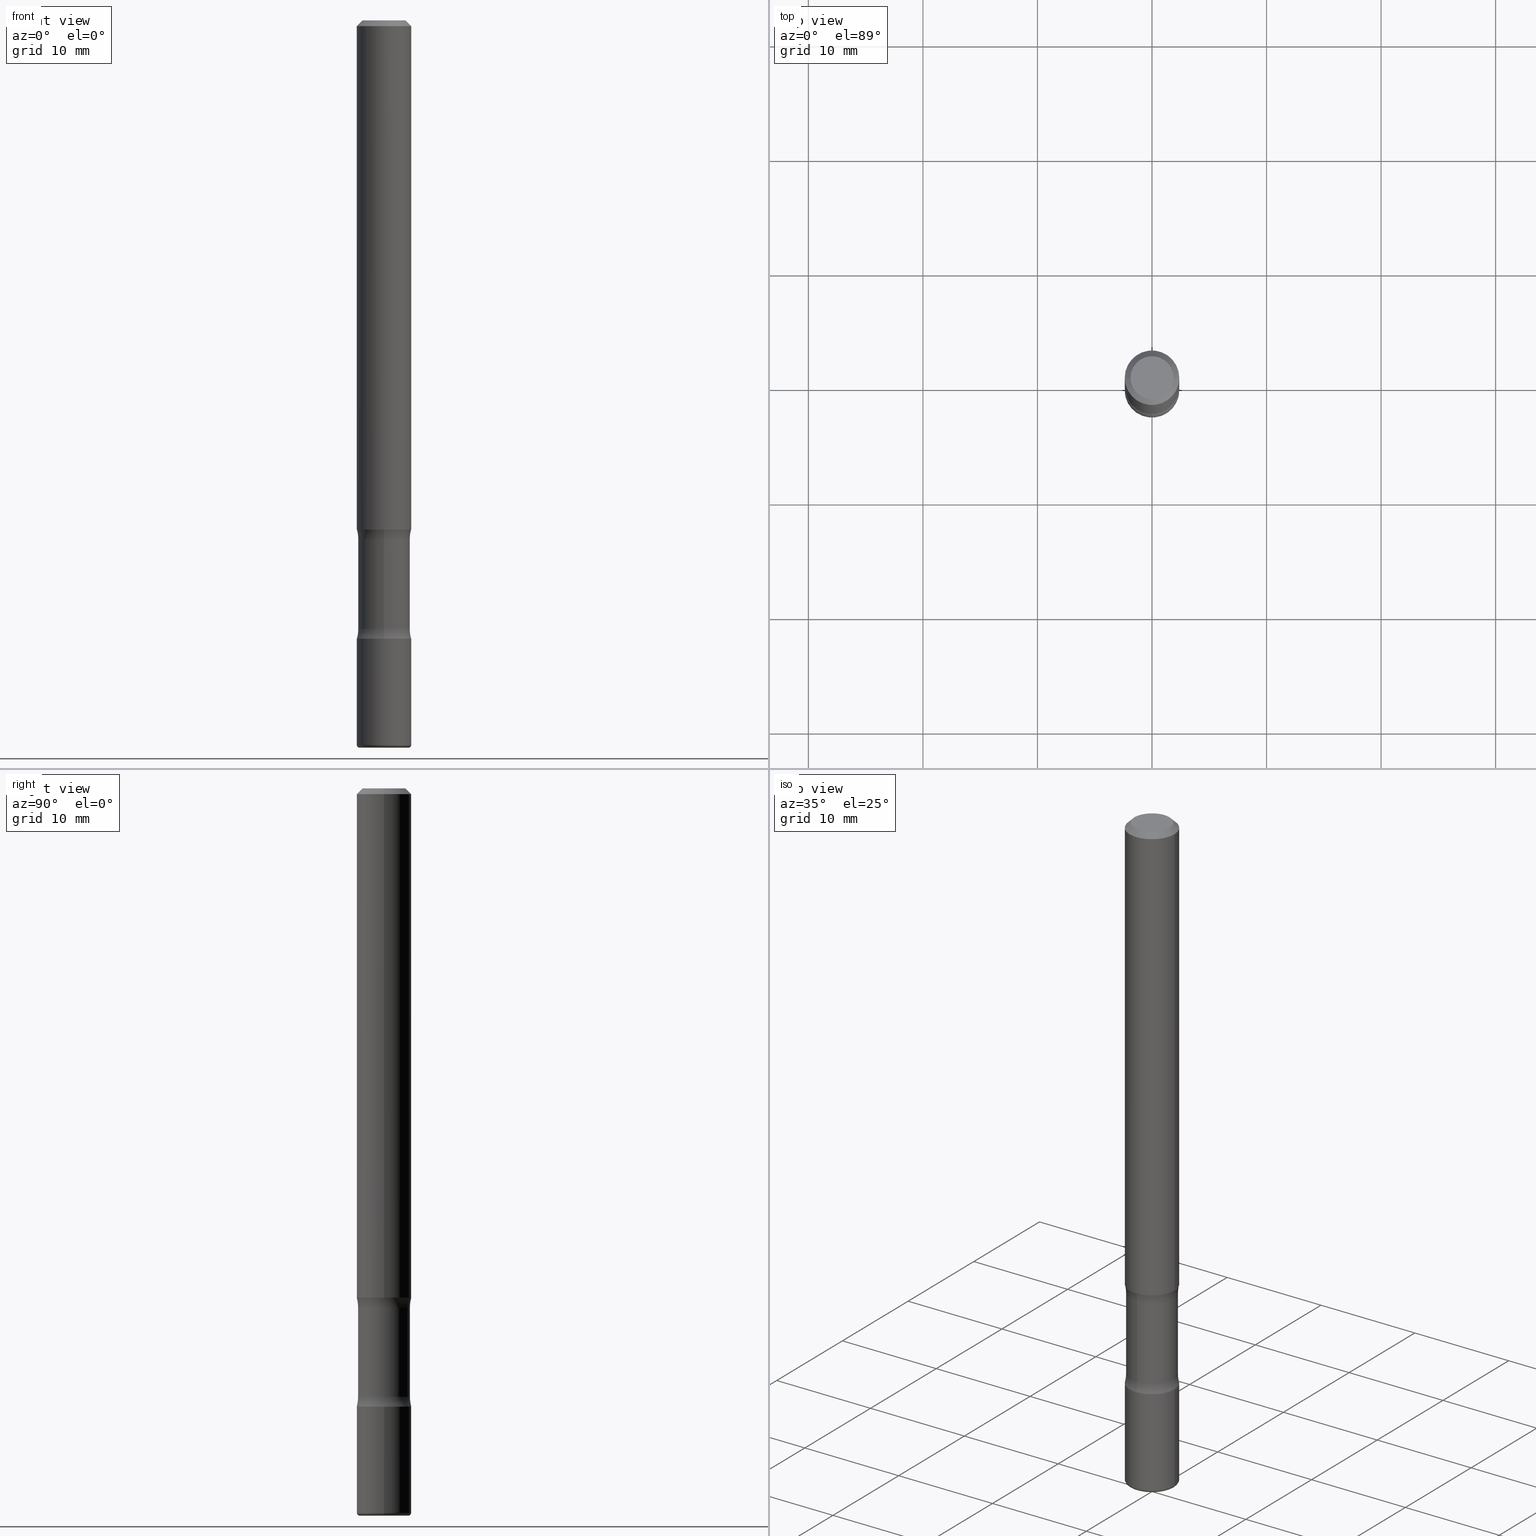
[diagram: canonical four-view strip — front | top / right | iso, engineering-drawing reading convention]
A machine part, canonical four-view strip (front | top / right | iso — engineering-drawing reading convention). The complete STEP part file that produces these views, byte-faithful:
ISO-10303-21;
HEADER;
FILE_DESCRIPTION (( 'STEP AP203' ),
    '1' );
FILE_NAME ('37771.STEP',
    '2024-03-02T00:11:02',
    ( '' ),
    ( '' ),
    'SwSTEP 2.0',
    'SolidWorks 2023',
    '' );
FILE_SCHEMA (( 'CONFIG_CONTROL_DESIGN' ));
ENDSEC;

DATA;
#1 = LINE ( 'NONE', #416, #74 ) ;
#2 = EDGE_LOOP ( 'NONE', ( #294, #223, #277, #60 ) ) ;
#3 = CARTESIAN_POINT ( 'NONE',  ( -6.431716872910290192E-16, -0.09375000000000745237, -2.125000000000000000 ) ) ;
#4 = APPLICATION_PROTOCOL_DEFINITION ( 'international standard', 'config_control_design', 1994, #108 ) ;
#5 = VERTEX_POINT ( 'NONE', #537 ) ;
#6 = CALENDAR_DATE ( 2024, 1, 3 ) ;
#7 = ADVANCED_FACE ( 'NONE', ( #14 ), #493, .F. ) ;
#8 = VERTEX_POINT ( 'NONE', #443 ) ;
#9 = ORIENTED_EDGE ( 'NONE', *, *, #442, .T. ) ;
#10 = DIRECTION ( 'NONE',  ( 6.982962677686265133E-15, 1.000000000000000000, -6.134676196298701332E-15 ) ) ;
#11 = PERSON_AND_ORGANIZATION ( #480, #534 ) ;
#12 = CIRCLE ( 'NONE', #207, 0.09375000000000009714 ) ;
#13 = ORIENTED_EDGE ( 'NONE', *, *, #181, .F. ) ;
#14 = FACE_OUTER_BOUND ( 'NONE', #87, .T. ) ;
#15 = PLANE ( 'NONE',  #124 ) ;
#16 = VERTEX_POINT ( 'NONE', #392 ) ;
#17 = CARTESIAN_POINT ( 'NONE',  ( 4.325656488947447574E-29, -6.281246590105103764E-15, -1.783910210022204623 ) ) ;
#18 = VERTEX_POINT ( 'NONE', #63 ) ;
#19 = EDGE_CURVE ( 'NONE', #16, #57, #172, .T. ) ;
#20 = AXIS2_PLACEMENT_3D ( 'NONE', #258, #255, #418 ) ;
#21 = DIRECTION ( 'NONE',  ( 1.000000000000000000, -6.860497997771530774E-15, 4.842693077587735886E-29 ) ) ;
#22 = CC_DESIGN_SECURITY_CLASSIFICATION ( #506, ( #212 ) ) ;
#23 = EDGE_LOOP ( 'NONE', ( #67, #356, #273, #112 ) ) ;
#24 = CARTESIAN_POINT ( 'NONE',  ( 0.08375000000000003275, -9.313526471364089937E-15, -2.500000000000000000 ) ) ;
#25 = DIRECTION ( 'NONE',  ( 6.982962677686265922E-15, 1.000000000000000000, -2.913971193241877611E-15 ) ) ;
#26 = EDGE_CURVE ( 'NONE', #389, #530, #405, .T. ) ;
#27 = AXIS2_PLACEMENT_3D ( 'NONE', #486, #93, #33 ) ;
#28 = SHAPE_DEFINITION_REPRESENTATION ( #35, #115 ) ;
#29 =( LENGTH_UNIT ( ) NAMED_UNIT ( * ) SI_UNIT ( $, .METRE. ) );
#30 = AXIS2_PLACEMENT_3D ( 'NONE', #188, #556, #170 ) ;
#31 = CARTESIAN_POINT ( 'NONE',  ( -6.110131029264649859E-16, -0.08906250000000860700, -2.499999999999999556 ) ) ;
#32 = CARTESIAN_POINT ( 'NONE',  ( -1.468575352647924772E-15, -0.2140625000000062339, -1.783910210022203513 ) ) ;
#33 = DIRECTION ( 'NONE',  ( -1.000000000000000000, 6.982962677686267499E-15, 0.000000000000000000 ) ) ;
#34 = DIRECTION ( 'NONE',  ( -6.982962677686265922E-15, -1.000000000000000000, 0.000000000000000000 ) ) ;
#35 = PRODUCT_DEFINITION_SHAPE ( 'NONE', 'NONE',  #379 ) ;
#36 = APPROVAL ( #422, 'UNSPECIFIED' ) ;
#37 = CIRCLE ( 'NONE', #557, 0.1250000000000000278 ) ;
#38 = AXIS2_PLACEMENT_3D ( 'NONE', #455, #72, #163 ) ;
#39 = VERTEX_POINT ( 'NONE', #360 ) ;
#40 = FACE_OUTER_BOUND ( 'NONE', #538, .T. ) ;
#41 = CARTESIAN_POINT ( 'NONE',  ( 6.113672015462842613E-29, -8.728703347107864943E-15, -2.500000000000000000 ) ) ;
#42 = ADVANCED_FACE ( 'NONE', ( #482 ), #452, .T. ) ;
#43 = DIRECTION ( 'NONE',  ( 2.553476385947133355E-29, -3.336808337214295667E-15, -1.000000000000000000 ) ) ;
#44 = EDGE_CURVE ( 'NONE', #481, #386, #446, .T. ) ;
#45 = AXIS2_PLACEMENT_3D ( 'NONE', #448, #100, #193 ) ;
#46 = CARTESIAN_POINT ( 'NONE',  ( 0.09374999999999981959, -7.130013140679428044E-16, -0.02000000000000001776 ) ) ;
#47 = AXIS2_PLACEMENT_3D ( 'NONE', #289, #312, #189 ) ;
#48 = EDGE_LOOP ( 'NONE', ( #352, #178, #89, #400 ) ) ;
#49 = COORDINATED_UNIVERSAL_TIME_OFFSET ( 5, 0, .BEHIND. ) ;
#50 = PLANE ( 'NONE',  #346 ) ;
#51 = ORIENTED_EDGE ( 'NONE', *, *, #315, .T. ) ;
#52 = DATE_TIME_ROLE ( 'creation_date' ) ;
#53 = ADVANCED_FACE ( 'NONE', ( #409 ), #148, .T. ) ;
#54 = ORIENTED_EDGE ( 'NONE', *, *, #191, .T. ) ;
#55 = APPROVAL_DATE_TIME ( #141, #272 ) ;
#56 = VERTEX_POINT ( 'NONE', #244 ) ;
#57 = VERTEX_POINT ( 'NONE', #299 ) ;
#58 = CIRCLE ( 'NONE', #335, 0.09375000000000004163 ) ;
#59 = CYLINDRICAL_SURFACE ( 'NONE', #490, 0.09375000000000002776 ) ;
#60 = ORIENTED_EDGE ( 'NONE', *, *, #315, .F. ) ;
#61 = VERTEX_POINT ( 'NONE', #296 ) ;
#62 = EDGE_CURVE ( 'NONE', #5, #39, #453, .T. ) ;
#63 = CARTESIAN_POINT ( 'NONE',  ( 0.09375000000000004163, -6.764745094008592175E-15, -1.750000000000000000 ) ) ;
#64 = AXIS2_PLACEMENT_3D ( 'NONE', #120, #503, #111 ) ;
#65 = AXIS2_PLACEMENT_3D ( 'NONE', #240, #544, #209 ) ;
#66 = CC_DESIGN_DATE_AND_TIME_ASSIGNMENT ( #268, #52, ( #379 ) ) ;
#67 = ORIENTED_EDGE ( 'NONE', *, *, #468, .F. ) ;
#68 = CLOSED_SHELL ( 'NONE', ( #365, #71, #291, #415, #304, #95, #408, #345 ) ) ;
#69 = APPLICATION_PROTOCOL_DEFINITION ( 'international standard', 'config_control_design', 1994, #383 ) ;
#70 = AXIS2_PLACEMENT_3D ( 'NONE', #278, #462, #470 ) ;
#71 = ADVANCED_FACE ( 'NONE', ( #410 ), #123, .F. ) ;
#72 = DIRECTION ( 'NONE',  ( 2.553476385947133355E-29, -3.336808337214295667E-15, -1.000000000000000000 ) ) ;
#73 = AXIS2_PLACEMENT_3D ( 'NONE', #169, #176, #265 ) ;
#74 = VECTOR ( 'NONE', #511, 39.37007874015748143 ) ;
#75 = AXIS2_PLACEMENT_3D ( 'NONE', #381, #351, #96 ) ;
#76 = FACE_OUTER_BOUND ( 'NONE', #293, .T. ) ;
#77 = EDGE_CURVE ( 'NONE', #61, #322, #37, .T. ) ;
#78 = CARTESIAN_POINT ( 'NONE',  ( -0.07374999999999984346, 5.499083108677921624E-16, -3.723527850031186263E-30 ) ) ;
#79 = DESIGN_CONTEXT ( 'detailed design', #108, 'design' ) ;
#80 = DIRECTION ( 'NONE',  ( 1.000000000000000000, -6.982962677686266711E-15, 4.876176775795935793E-29 ) ) ;
#81 = CALENDAR_DATE ( 2024, 1, 3 ) ;
#82 = CLOSED_SHELL ( 'NONE', ( #560, #42, #281, #7, #228, #326 ) ) ;
#83 = EDGE_CURVE ( 'NONE', #322, #439, #12, .T. ) ;
#84 = CIRCLE ( 'NONE', #348, 0.1250000000000000278 ) ;
#85 = ORIENTED_EDGE ( 'NONE', *, *, #376, .F. ) ;
#86 = DATE_TIME_ROLE ( 'classification_date' ) ;
#87 = EDGE_LOOP ( 'NONE', ( #396, #413 ) ) ;
#88 = PERSON_AND_ORGANIZATION_ROLE ( 'creator' ) ;
#89 = ORIENTED_EDGE ( 'NONE', *, *, #457, .F. ) ;
#90 = FACE_OUTER_BOUND ( 'NONE', #200, .T. ) ;
#91 = VERTEX_POINT ( 'NONE', #205 ) ;
#92 = AXIS2_PLACEMENT_3D ( 'NONE', #133, #456, #488 ) ;
#93 = DIRECTION ( 'NONE',  ( 2.445468806185136597E-29, -3.491481338843145583E-15, -1.000000000000000000 ) ) ;
#94 = CIRCLE ( 'NONE', #358, 0.08906249999999994726 ) ;
#95 = ADVANCED_FACE ( 'NONE', ( #371 ), #543, .F. ) ;
#96 = DIRECTION ( 'NONE',  ( 6.982962677686265922E-15, 1.000000000000000000, -3.336808337214296061E-15 ) ) ;
#97 = ORIENTED_EDGE ( 'NONE', *, *, #145, .T. ) ;
#98 = ORIENTED_EDGE ( 'NONE', *, *, #159, .T. ) ;
#99 = LINE ( 'NONE', #174, #302 ) ;
#100 = DIRECTION ( 'NONE',  ( 2.438088387897960049E-29, -3.491481338843145188E-15, -1.000000000000000000 ) ) ;
#101 = EDGE_CURVE ( 'NONE', #57, #16, #489, .T. ) ;
#102 = VERTEX_POINT ( 'NONE', #46 ) ;
#103 = CIRCLE ( 'NONE', #394, 0.08906249999999993339 ) ;
#104 = CARTESIAN_POINT ( 'NONE',  ( 6.113672015462842613E-29, -8.728703347107864943E-15, -2.500000000000000000 ) ) ;
#105 = LOCAL_TIME ( 19, 11, 2.000000000000000000, #49 ) ;
#106 = DIRECTION ( 'NONE',  ( -1.000000000000000000, 6.982962677686265922E-15, -4.883557194083112901E-29 ) ) ;
#107 = ORIENTED_EDGE ( 'NONE', *, *, #347, .F. ) ;
#108 = APPLICATION_CONTEXT ( 'configuration controlled 3d designs of mechanical parts and assemblies' ) ;
#109 = EDGE_LOOP ( 'NONE', ( #509, #522, #311, #391 ) ) ;
#110 = CC_DESIGN_DATE_AND_TIME_ASSIGNMENT ( #467, #86, ( #506 ) ) ;
#111 = DIRECTION ( 'NONE',  ( 1.000000000000000000, -6.982962677686265133E-15, 4.883557194083112340E-29 ) ) ;
#112 = ORIENTED_EDGE ( 'NONE', *, *, #515, .T. ) ;
#113 = ORIENTED_EDGE ( 'NONE', *, *, #434, .F. ) ;
#114 = AXIS2_PLACEMENT_3D ( 'NONE', #553, #344, #182 ) ;
#115 = ADVANCED_BREP_SHAPE_REPRESENTATION ( '37771', ( #171, #197, #194, #252 ), #298 ) ;
#116 = LINE ( 'NONE', #407, #117 ) ;
#117 = VECTOR ( 'NONE', #329, 39.37007874015748143 ) ;
#118 = EDGE_CURVE ( 'NONE', #231, #102, #275, .T. ) ;
#119 = PLANE ( 'NONE',  #402 ) ;
#120 = CARTESIAN_POINT ( 'NONE',  ( 6.089217327400989947E-29, -8.693788533719431716E-15, -2.489999999999999769 ) ) ;
#121 = MECHANICAL_CONTEXT ( 'NONE', #383, 'mechanical' ) ;
#122 = EDGE_CURVE ( 'NONE', #439, #322, #199, .T. ) ;
#123 = TOROIDAL_SURFACE ( 'NONE', #132, 0.2140624999999999889, 0.1250000000000000278 ) ;
#124 = AXIS2_PLACEMENT_3D ( 'NONE', #465, #366, #420 ) ;
#125 = CARTESIAN_POINT ( 'NONE',  ( -0.09375000000000002776, 6.661338147750941215E-16, -4.611501647113975397E-30 ) ) ;
#126 = FACE_OUTER_BOUND ( 'NONE', #109, .T. ) ;
#127 = DIRECTION ( 'NONE',  ( 1.000000000000000000, -6.982962677686267499E-15, 0.000000000000000000 ) ) ;
#128 = CARTESIAN_POINT ( 'NONE',  ( 6.546527510331397661E-16, 0.09374999999999261702, -2.125000000000000444 ) ) ;
#129 = ORIENTED_EDGE ( 'NONE', *, *, #145, .F. ) ;
#130 = DIRECTION ( 'NONE',  ( 1.000000000000000000, -6.982962677686266711E-15, 4.876176775795935793E-29 ) ) ;
#131 = PERSON_AND_ORGANIZATION_ROLE ( 'creator' ) ;
#132 = AXIS2_PLACEMENT_3D ( 'NONE', #161, #341, #249 ) ;
#133 = CARTESIAN_POINT ( 'NONE',  ( 5.196621213143415268E-29, -7.419397845041685201E-15, -2.125000000000000000 ) ) ;
#134 = CIRCLE ( 'NONE', #525, 0.07374999999999984346 ) ;
#135 = ORIENTED_EDGE ( 'NONE', *, *, #144, .T. ) ;
#136 = DIRECTION ( 'NONE',  ( 2.553476385947133355E-29, -3.336808337214295667E-15, -1.000000000000000000 ) ) ;
#137 = PERSON_AND_ORGANIZATION ( #480, #534 ) ;
#138 = EDGE_LOOP ( 'NONE', ( #431, #411, #54, #398 ) ) ;
#139 = DIRECTION ( 'NONE',  ( 1.000000000000000000, -6.982962677686275388E-15, 0.000000000000000000 ) ) ;
#140 = DIRECTION ( 'NONE',  ( -2.445468806185136877E-29, 3.491481338843145188E-15, 1.000000000000000000 ) ) ;
#141 = DATE_AND_TIME ( #81, #423 ) ;
#142 = EDGE_LOOP ( 'NONE', ( #13, #471 ) ) ;
#143 = ORIENTED_EDGE ( 'NONE', *, *, #83, .F. ) ;
#144 = EDGE_CURVE ( 'NONE', #477, #231, #355, .T. ) ;
#145 = EDGE_CURVE ( 'NONE', #91, #530, #378, .T. ) ;
#146 = DIRECTION ( 'NONE',  ( 1.000000000000000000, -6.982962677686265922E-15, 4.876176775795935793E-29 ) ) ;
#147 = ORIENTED_EDGE ( 'NONE', *, *, #549, .T. ) ;
#148 = TOROIDAL_SURFACE ( 'NONE', #64, 0.08375000000000003275, 0.01000000000000008174 ) ;
#149 = CIRCLE ( 'NONE', #47, 0.09375000000000002776 ) ;
#150 = DIRECTION ( 'NONE',  ( -2.445468806185136597E-29, 3.491481338843145583E-15, 1.000000000000000000 ) ) ;
#151 = CARTESIAN_POINT ( 'NONE',  ( 5.110032292609207884E-29, -7.306245973522905960E-15, -2.091089789977795821 ) ) ;
#152 = DIRECTION ( 'NONE',  ( 1.000000000000000000, -6.982962677686270655E-15, 0.000000000000000000 ) ) ;
#153 = CARTESIAN_POINT ( 'NONE',  ( 0.000000000000000000, 0.000000000000000000, 0.000000000000000000 ) ) ;
#154 = VECTOR ( 'NONE', #303, 39.37007874015748143 ) ;
#155 = AXIS2_PLACEMENT_3D ( 'NONE', #417, #387, #270 ) ;
#156 = VECTOR ( 'NONE', #140, 39.37007874015748143 ) ;
#157 = DIRECTION ( 'NONE',  ( 1.000000000000000000, -6.982962677686266711E-15, 4.876176775795935793E-29 ) ) ;
#158 = EDGE_LOOP ( 'NONE', ( #325, #245, #196, #282 ) ) ;
#159 = EDGE_CURVE ( 'NONE', #18, #102, #1, .T. ) ;
#160 =( NAMED_UNIT ( * ) SI_UNIT ( $, .STERADIAN. ) SOLID_ANGLE_UNIT ( ) );
#161 = CARTESIAN_POINT ( 'NONE',  ( 5.113694852322927974E-29, -7.301000979552905916E-15, -2.091089789977795821 ) ) ;
#162 = PRODUCT ( '37771', '37771', '', ( #121 ) ) ;
#163 = DIRECTION ( 'NONE',  ( 6.982962677686265922E-15, 1.000000000000000000, -3.336808337214296061E-15 ) ) ;
#164 = VECTOR ( 'NONE', #384, 39.37007874015748143 ) ;
#165 = LOCAL_TIME ( 19, 11, 2.000000000000000000, #520 ) ;
#166 = DIRECTION ( 'NONE',  ( 1.000000000000000000, 0.000000000000000000, 0.000000000000000000 ) ) ;
#167 = CC_DESIGN_PERSON_AND_ORGANIZATION_ASSIGNMENT ( #137, #88, ( #379 ) ) ;
#168 = DIRECTION ( 'NONE',  ( 2.553476385947132794E-29, -3.336808337214295667E-15, -1.000000000000000000 ) ) ;
#169 = CARTESIAN_POINT ( 'NONE',  ( 6.113672015462842613E-29, -8.728703347107864943E-15, -2.500000000000000000 ) ) ;
#170 = DIRECTION ( 'NONE',  ( 6.982962677686265133E-15, 1.000000000000000000, -6.134676196298701332E-15 ) ) ;
#171 = MANIFOLD_SOLID_BREP ( 'Body-Move/Copy2[1]', #458 ) ;
#172 = CIRCLE ( 'NONE', #533, 0.09375000000000002776 ) ;
#173 = CARTESIAN_POINT ( 'NONE',  ( -0.09374999999999981959, 5.848231242562233185E-16, -0.02000000000000001776 ) ) ;
#174 = CARTESIAN_POINT ( 'NONE',  ( -0.09374999999999991673, 6.661338147750933326E-16, -4.611501647113969791E-30 ) ) ;
#175 = DIRECTION ( 'NONE',  ( 0.7071067811865467956, -7.319954787623254468E-15, -0.7071067811865482389 ) ) ;
#176 = DIRECTION ( 'NONE',  ( -2.445468806185136597E-29, 3.491481338843145583E-15, 1.000000000000000000 ) ) ;
#177 = FACE_OUTER_BOUND ( 'NONE', #23, .T. ) ;
#178 = ORIENTED_EDGE ( 'NONE', *, *, #434, .T. ) ;
#179 = DIRECTION ( 'NONE',  ( -2.445468806185136597E-29, 3.491481338843145583E-15, 1.000000000000000000 ) ) ;
#180 = APPROVAL_STATUS ( 'not_yet_approved' ) ;
#181 = EDGE_CURVE ( 'NONE', #389, #56, #474, .T. ) ;
#182 = DIRECTION ( 'NONE',  ( 6.982962677686265922E-15, 1.000000000000000000, -2.913971193241877611E-15 ) ) ;
#183 = ORIENTED_EDGE ( 'NONE', *, *, #26, .T. ) ;
#184 = PERSON_AND_ORGANIZATION ( #480, #534 ) ;
#185 = TOROIDAL_SURFACE ( 'NONE', #75, 0.2140624999999999889, 0.1250000000000000278 ) ;
#186 = ORIENTED_EDGE ( 'NONE', *, *, #118, .F. ) ;
#187 = ORIENTED_EDGE ( 'NONE', *, *, #507, .F. ) ;
#188 = CARTESIAN_POINT ( 'NONE',  ( 6.154174857873591467E-29, -8.670700971497045879E-15, -2.500000000000000000 ) ) ;
#189 = DIRECTION ( 'NONE',  ( 1.000000000000000000, -6.982962677686270655E-15, 0.000000000000000000 ) ) ;
#190 = APPROVAL_ROLE ( '' ) ;
#191 = EDGE_CURVE ( 'NONE', #39, #386, #237, .T. ) ;
#192 = ORIENTED_EDGE ( 'NONE', *, *, #242, .T. ) ;
#193 = DIRECTION ( 'NONE',  ( -1.000000000000000000, 6.982962677686265922E-15, -4.876176775795935793E-29 ) ) ;
#194 = MANIFOLD_SOLID_BREP ( 'Body-Move/Copy2[4]', #68 ) ;
#195 = ORIENTED_EDGE ( 'NONE', *, *, #122, .F. ) ;
#196 = ORIENTED_EDGE ( 'NONE', *, *, #122, .T. ) ;
#197 = MANIFOLD_SOLID_BREP ( 'Body-Move/Copy2[2]', #82 ) ;
#198 = DIRECTION ( 'NONE',  ( 2.553476385947133355E-29, -3.336808337214295667E-15, -1.000000000000000000 ) ) ;
#199 = CIRCLE ( 'NONE', #114, 0.09375000000000009714 ) ;
#200 = EDGE_LOOP ( 'NONE', ( #430, #359, #340, #279 ) ) ;
#201 = CC_DESIGN_APPROVAL ( #272, ( #379 ) ) ;
#202 = LOCAL_TIME ( 19, 11, 2.000000000000000000, #393 ) ;
#203 = DIRECTION ( 'NONE',  ( 6.860497997771531562E-15, 1.000000000000000000, 0.000000000000000000 ) ) ;
#204 = CARTESIAN_POINT ( 'NONE',  ( 5.196621213143415268E-29, -7.419397845041685201E-15, -2.125000000000000000 ) ) ;
#205 = CARTESIAN_POINT ( 'NONE',  ( -0.09375000000000005551, -8.027654718944337792E-15, -2.489999999999999769 ) ) ;
#206 = DIRECTION ( 'NONE',  ( 2.553476385947133355E-29, -3.336808337214295667E-15, -1.000000000000000000 ) ) ;
#207 = AXIS2_PLACEMENT_3D ( 'NONE', #247, #552, #25 ) ;
#208 = CIRCLE ( 'NONE', #65, 0.09375000000000002776 ) ;
#209 = DIRECTION ( 'NONE',  ( 6.982962677686265922E-15, 1.000000000000000000, -2.913971193241879977E-15 ) ) ;
#210 = EDGE_CURVE ( 'NONE', #56, #389, #550, .T. ) ;
#211 = AXIS2_PLACEMENT_3D ( 'NONE', #523, #136, #10 ) ;
#212 = PRODUCT_DEFINITION_FORMATION_WITH_SPECIFIED_SOURCE ( 'ANY', '', #162, .NOT_KNOWN. ) ;
#213 = CARTESIAN_POINT ( 'NONE',  ( 0.09375000000000002776, -6.546527510330876027E-16, 4.571415727308691207E-30 ) ) ;
#214 = CARTESIAN_POINT ( 'NONE',  ( 4.890937612370276662E-31, -6.982962677686296539E-17, -0.02000000000000001776 ) ) ;
#215 = AXIS2_PLACEMENT_3D ( 'NONE', #373, #547, #34 ) ;
#216 = LOCAL_TIME ( 19, 11, 2.000000000000000000, #307 ) ;
#217 = CARTESIAN_POINT ( 'NONE',  ( 4.325656488947447574E-29, -6.281246590105103764E-15, -1.783910210022204623 ) ) ;
#218 = ORIENTED_EDGE ( 'NONE', *, *, #451, .F. ) ;
#219 = EDGE_CURVE ( 'NONE', #91, #57, #424, .T. ) ;
#220 = DIRECTION ( 'NONE',  ( -2.445468806185136597E-29, 3.491481338843145583E-15, 1.000000000000000000 ) ) ;
#221 = CALENDAR_DATE ( 2024, 1, 3 ) ;
#222 = DIRECTION ( 'NONE',  ( 1.000000000000000000, -6.982962677686265922E-15, 4.876176775795935793E-29 ) ) ;
#223 = ORIENTED_EDGE ( 'NONE', *, *, #219, .T. ) ;
#224 = DIRECTION ( 'NONE',  ( 1.000000000000000000, -6.982962677686266711E-15, 4.876176775795935793E-29 ) ) ;
#225 = PERSON_AND_ORGANIZATION_ROLE ( 'classification_officer' ) ;
#226 = ORIENTED_EDGE ( 'NONE', *, *, #19, .T. ) ;
#227 = PERSON_AND_ORGANIZATION ( #480, #534 ) ;
#228 = ADVANCED_FACE ( 'NONE', ( #461 ), #50, .F. ) ;
#229 = AXIS2_PLACEMENT_3D ( 'NONE', #32, #508, #414 ) ;
#230 = ORIENTED_EDGE ( 'NONE', *, *, #101, .T. ) ;
#231 = VERTEX_POINT ( 'NONE', #173 ) ;
#232 = DIRECTION ( 'NONE',  ( -2.445468806185136597E-29, 3.491481338843145583E-15, 1.000000000000000000 ) ) ;
#233 = APPROVAL ( #271, 'UNSPECIFIED' ) ;
#234 = EDGE_LOOP ( 'NONE', ( #85, #218 ) ) ;
#235 = ORIENTED_EDGE ( 'NONE', *, *, #26, .F. ) ;
#236 = DIRECTION ( 'NONE',  ( 1.000000000000000000, -6.982962677686267499E-15, 0.000000000000000000 ) ) ;
#237 = CIRCLE ( 'NONE', #331, 0.08906249999999993339 ) ;
#238 = AXIS2_PLACEMENT_3D ( 'NONE', #257, #179, #487 ) ;
#239 = CARTESIAN_POINT ( 'NONE',  ( 1.494790448192259658E-15, 0.2140624999999937161, -1.783910210022205289 ) ) ;
#240 = CARTESIAN_POINT ( 'NONE',  ( 5.196621213143415268E-29, -7.419397845041685201E-15, -2.125000000000000000 ) ) ;
#241 = DIRECTION ( 'NONE',  ( 6.982962677686265133E-15, 1.000000000000000000, -3.067338098149350666E-15 ) ) ;
#242 = EDGE_CURVE ( 'NONE', #364, #481, #301, .T. ) ;
#243 = EDGE_CURVE ( 'NONE', #5, #439, #459, .T. ) ;
#244 = CARTESIAN_POINT ( 'NONE',  ( -0.08375000000000003275, -8.080639262426558657E-15, -2.500000000000000000 ) ) ;
#245 = ORIENTED_EDGE ( 'NONE', *, *, #243, .T. ) ;
#246 = DIRECTION ( 'NONE',  ( -1.000000000000000000, 6.982962677686265922E-15, -4.876176775795935793E-29 ) ) ;
#247 = CARTESIAN_POINT ( 'NONE',  ( 4.239067568413239630E-29, -6.168094718586322946E-15, -1.750000000000000000 ) ) ;
#248 = UNCERTAINTY_MEASURE_WITH_UNIT (LENGTH_MEASURE( 1.000000000000000082E-05 ), #498, 'distance_accuracy_value', 'NONE');
#249 = DIRECTION ( 'NONE',  ( 6.982962677686265922E-15, 1.000000000000000000, -3.336808337214296061E-15 ) ) ;
#250 = CARTESIAN_POINT ( 'NONE',  ( 4.279570410823988484E-29, -6.110092342975504671E-15, -1.750000000000000000 ) ) ;
#251 = CARTESIAN_POINT ( 'NONE',  ( 4.279570410823988484E-29, -6.110092342975504671E-15, -1.750000000000000000 ) ) ;
#252 = AXIS2_PLACEMENT_3D ( 'NONE', #463, #308, #166 ) ;
#253 = DIRECTION ( 'NONE',  ( 1.000000000000000000, -6.982962677686270655E-15, 0.000000000000000000 ) ) ;
#254 = CYLINDRICAL_SURFACE ( 'NONE', #211, 0.08906249999999993339 ) ;
#255 = DIRECTION ( 'NONE',  ( -2.445468806185136597E-29, 3.491481338843145583E-15, 1.000000000000000000 ) ) ;
#256 = DIRECTION ( 'NONE',  ( 1.000000000000000000, -6.982962677686263555E-15, 0.000000000000000000 ) ) ;
#257 = CARTESIAN_POINT ( 'NONE',  ( 4.279570410823988484E-29, -6.110092342975504671E-15, -1.750000000000000000 ) ) ;
#258 = CARTESIAN_POINT ( 'NONE',  ( 6.089217327400989947E-29, -8.693788533719431716E-15, -2.489999999999999769 ) ) ;
#259 = CARTESIAN_POINT ( 'NONE',  ( 6.089217327400989947E-29, -8.693788533719431716E-15, -2.489999999999999769 ) ) ;
#260 = DIRECTION ( 'NONE',  ( 2.553476385947133355E-29, -3.336808337214295667E-15, -1.000000000000000000 ) ) ;
#261 = LINE ( 'NONE', #213, #156 ) ;
#262 = AXIS2_PLACEMENT_3D ( 'NONE', #41, #555, #256 ) ;
#263 = VECTOR ( 'NONE', #175, 39.37007874015748143 ) ;
#264 = APPROVAL_PERSON_ORGANIZATION ( #184, #36, #429 ) ;
#265 = DIRECTION ( 'NONE',  ( 1.000000000000000000, -6.982962677686263555E-15, 0.000000000000000000 ) ) ;
#266 = ORIENTED_EDGE ( 'NONE', *, *, #181, .T. ) ;
#267 = CYLINDRICAL_SURFACE ( 'NONE', #460, 0.09374999999999991673 ) ;
#268 = DATE_AND_TIME ( #479, #165 ) ;
#269 = EDGE_LOOP ( 'NONE', ( #226, #230 ) ) ;
#270 = DIRECTION ( 'NONE',  ( 1.000000000000000000, -6.982962677686265922E-15, 4.876176775795935793E-29 ) ) ;
#271 = APPROVAL_STATUS ( 'not_yet_approved' ) ;
#272 = APPROVAL ( #180, 'UNSPECIFIED' ) ;
#273 = ORIENTED_EDGE ( 'NONE', *, *, #44, .T. ) ;
#274 = DIRECTION ( 'NONE',  ( -2.445468806185136877E-29, 3.491481338843145188E-15, 1.000000000000000000 ) ) ;
#275 = CIRCLE ( 'NONE', #297, 0.09374999999999981959 ) ;
#276 = AXIS2_PLACEMENT_3D ( 'NONE', #317, #220, #130 ) ;
#277 = ORIENTED_EDGE ( 'NONE', *, *, #19, .F. ) ;
#278 = CARTESIAN_POINT ( 'NONE',  ( 4.338651280918389502E-29, -6.262637308385086581E-15, -1.783910210022204401 ) ) ;
#279 = ORIENTED_EDGE ( 'NONE', *, *, #83, .T. ) ;
#280 = ORIENTED_EDGE ( 'NONE', *, *, #62, .T. ) ;
#281 = ADVANCED_FACE ( 'NONE', ( #40 ), #505, .T. ) ;
#282 = ORIENTED_EDGE ( 'NONE', *, *, #77, .F. ) ;
#283 = CARTESIAN_POINT ( 'NONE',  ( 6.219201134814836160E-16, 0.08906249999999261979, -2.091089789977795821 ) ) ;
#284 = PLANE ( 'NONE',  #496 ) ;
#285 = ORIENTED_EDGE ( 'NONE', *, *, #515, .F. ) ;
#286 = CIRCLE ( 'NONE', #276, 0.07374999999999984346 ) ;
#287 = DIRECTION ( 'NONE',  ( -2.445468806185136597E-29, 3.491481338843145583E-15, 1.000000000000000000 ) ) ;
#288 = DIRECTION ( 'NONE',  ( -6.982962677686265922E-15, -1.000000000000000000, 3.336808337214295667E-15 ) ) ;
#289 = CARTESIAN_POINT ( 'NONE',  ( 6.089217327400989947E-29, -8.693788533719431716E-15, -2.489999999999999769 ) ) ;
#290 = ORIENTED_EDGE ( 'NONE', *, *, #484, .F. ) ;
#291 = ADVANCED_FACE ( 'NONE', ( #554 ), #432, .F. ) ;
#292 = DIRECTION ( 'NONE',  ( -1.000000000000000000, 7.105427357600964782E-15, 0.000000000000000000 ) ) ;
#293 = EDGE_LOOP ( 'NONE', ( #113, #395, #98, #186 ) ) ;
#294 = ORIENTED_EDGE ( 'NONE', *, *, #403, .T. ) ;
#295 = DATE_AND_TIME ( #221, #105 ) ;
#296 = CARTESIAN_POINT ( 'NONE',  ( 6.219201134814759246E-16, 0.08906249999999366063, -1.783910210022204845 ) ) ;
#297 = AXIS2_PLACEMENT_3D ( 'NONE', #214, #380, #127 ) ;
#298 =( GEOMETRIC_REPRESENTATION_CONTEXT ( 3 ) GLOBAL_UNCERTAINTY_ASSIGNED_CONTEXT ( ( #248 ) ) GLOBAL_UNIT_ASSIGNED_CONTEXT ( ( #498, #501, #160 ) ) REPRESENTATION_CONTEXT ( 'NONE', 'WORKASPACE' ) );
#299 = CARTESIAN_POINT ( 'NONE',  ( -0.09375000000000002776, -7.390459374605464534E-15, -2.125000000000000000 ) ) ;
#300 = DIRECTION ( 'NONE',  ( -2.445468806185136597E-29, 3.491481338843145583E-15, 1.000000000000000000 ) ) ;
#301 = CIRCLE ( 'NONE', #92, 0.09375000000000002776 ) ;
#302 = VECTOR ( 'NONE', #274, 39.37007874015748143 ) ;
#303 = DIRECTION ( 'NONE',  ( -2.445468806185136877E-29, 3.491481338843145188E-15, 1.000000000000000000 ) ) ;
#304 = ADVANCED_FACE ( 'NONE', ( #342 ), #119, .F. ) ;
#305 = CC_DESIGN_PERSON_AND_ORGANIZATION_ASSIGNMENT ( #528, #225, ( #506 ) ) ;
#306 = CYLINDRICAL_SURFACE ( 'NONE', #155, 0.09375000000000002776 ) ;
#307 = COORDINATED_UNIVERSAL_TIME_OFFSET ( 5, 0, .BEHIND. ) ;
#308 = DIRECTION ( 'NONE',  ( 0.000000000000000000, 0.000000000000000000, 1.000000000000000000 ) ) ;
#309 = CARTESIAN_POINT ( 'NONE',  ( 5.110032292609207884E-29, -7.306245973522905960E-15, -2.091089789977795821 ) ) ;
#310 = FACE_OUTER_BOUND ( 'NONE', #427, .T. ) ;
#311 = ORIENTED_EDGE ( 'NONE', *, *, #539, .T. ) ;
#312 = DIRECTION ( 'NONE',  ( -2.445468806185136597E-29, 3.491481338843145583E-15, 1.000000000000000000 ) ) ;
#313 = PERSON_AND_ORGANIZATION ( #480, #534 ) ;
#314 = CIRCLE ( 'NONE', #433, 0.01000000000000008174 ) ;
#315 = EDGE_CURVE ( 'NONE', #530, #16, #261, .T. ) ;
#316 = ORIENTED_EDGE ( 'NONE', *, *, #210, .T. ) ;
#317 = CARTESIAN_POINT ( 'NONE',  ( 0.000000000000000000, 0.000000000000000000, 0.000000000000000000 ) ) ;
#318 = COORDINATED_UNIVERSAL_TIME_OFFSET ( 5, 0, .BEHIND. ) ;
#319 = EDGE_LOOP ( 'NONE', ( #266, #425, #338, #235 ) ) ;
#320 = CARTESIAN_POINT ( 'NONE',  ( 0.09374999999999981959, -7.130013140679428044E-16, -0.02000000000000001776 ) ) ;
#321 = CALENDAR_DATE ( 2024, 1, 3 ) ;
#322 = VERTEX_POINT ( 'NONE', #514 ) ;
#323 = ORIENTED_EDGE ( 'NONE', *, *, #333, .T. ) ;
#324 = CARTESIAN_POINT ( 'NONE',  ( -0.08375000000000003275, -8.098708992520347873E-15, -2.489999999999999769 ) ) ;
#325 = ORIENTED_EDGE ( 'NONE', *, *, #500, .F. ) ;
#326 = ADVANCED_FACE ( 'NONE', ( #76 ), #267, .T. ) ;
#327 = CARTESIAN_POINT ( 'NONE',  ( 4.890937612370276662E-31, -6.982962677686296539E-17, -0.02000000000000001776 ) ) ;
#328 = CC_DESIGN_PERSON_AND_ORGANIZATION_ASSIGNMENT ( #353, #131, ( #212 ) ) ;
#329 = DIRECTION ( 'NONE',  ( 2.553476385947133355E-29, -3.336808337214295667E-15, -1.000000000000000000 ) ) ;
#330 = DIRECTION ( 'NONE',  ( -6.982962677686266711E-15, -1.000000000000000000, 3.491481338843145583E-15 ) ) ;
#331 = AXIS2_PLACEMENT_3D ( 'NONE', #309, #43, #469 ) ;
#332 = AXIS2_PLACEMENT_3D ( 'NONE', #334, #497, #288 ) ;
#333 = EDGE_CURVE ( 'NONE', #8, #102, #466, .T. ) ;
#334 = CARTESIAN_POINT ( 'NONE',  ( 8.726388948129611336E-30, -1.361158663068067946E-14, -2.125000000000000000 ) ) ;
#335 = AXIS2_PLACEMENT_3D ( 'NONE', #441, #150, #362 ) ;
#336 = EDGE_LOOP ( 'NONE', ( #187, #316, #183, #129 ) ) ;
#337 = LENGTH_MEASURE_WITH_UNIT ( LENGTH_MEASURE( 0.02539999999999999897 ), #29 );
#338 = ORIENTED_EDGE ( 'NONE', *, *, #403, .F. ) ;
#339 = DIRECTION ( 'NONE',  ( 2.438088387897960049E-29, -3.491481338843145188E-15, -1.000000000000000000 ) ) ;
#340 = ORIENTED_EDGE ( 'NONE', *, *, #77, .T. ) ;
#341 = DIRECTION ( 'NONE',  ( 2.553476385947133355E-29, -3.336808337214295667E-15, -1.000000000000000000 ) ) ;
#342 = FACE_OUTER_BOUND ( 'NONE', #492, .T. ) ;
#343 = CIRCLE ( 'NONE', #406, 0.09374999999999981959 ) ;
#344 = DIRECTION ( 'NONE',  ( 2.553476385947133355E-29, -3.336808337214295667E-15, -1.000000000000000000 ) ) ;
#345 = ADVANCED_FACE ( 'NONE', ( #126 ), #254, .T. ) ;
#346 = AXIS2_PLACEMENT_3D ( 'NONE', #251, #558, #222 ) ;
#347 = EDGE_CURVE ( 'NONE', #8, #477, #286, .T. ) ;
#348 = AXIS2_PLACEMENT_3D ( 'NONE', #401, #21, #203 ) ;
#349 = CARTESIAN_POINT ( 'NONE',  ( 0.000000000000000000, 0.000000000000000000, 0.000000000000000000 ) ) ;
#350 = CARTESIAN_POINT ( 'NONE',  ( 5.196621213143415268E-29, -7.419397845041685201E-15, -2.125000000000000000 ) ) ;
#351 = DIRECTION ( 'NONE',  ( 2.553476385947133355E-29, -3.336808337214295667E-15, -1.000000000000000000 ) ) ;
#352 = ORIENTED_EDGE ( 'NONE', *, *, #376, .T. ) ;
#353 = PERSON_AND_ORGANIZATION ( #480, #534 ) ;
#354 = ADVANCED_FACE ( 'NONE', ( #478 ), #306, .T. ) ;
#355 = LINE ( 'NONE', #521, #164 ) ;
#356 = ORIENTED_EDGE ( 'NONE', *, *, #549, .F. ) ;
#357 = APPROVAL_DATE_TIME ( #473, #233 ) ;
#358 = AXIS2_PLACEMENT_3D ( 'NONE', #217, #260, #385 ) ;
#359 = ORIENTED_EDGE ( 'NONE', *, *, #442, .F. ) ;
#360 = CARTESIAN_POINT ( 'NONE',  ( -6.270923951087521301E-16, -0.08906250000000723310, -2.091089789977795377 ) ) ;
#361 = PERSON_AND_ORGANIZATION_ROLE ( 'design_supplier' ) ;
#362 = DIRECTION ( 'NONE',  ( 1.000000000000000000, -6.982962677686269866E-15, 0.000000000000000000 ) ) ;
#363 = ORIENTED_EDGE ( 'NONE', *, *, #333, .F. ) ;
#364 = VERTEX_POINT ( 'NONE', #3 ) ;
#365 = ADVANCED_FACE ( 'NONE', ( #428 ), #472, .T. ) ;
#366 = DIRECTION ( 'NONE',  ( 2.438088387897960049E-29, -3.491481338843145188E-15, -1.000000000000000000 ) ) ;
#367 = AXIS2_PLACEMENT_3D ( 'NONE', #350, #464, #516 ) ;
#368 = ORIENTED_EDGE ( 'NONE', *, *, #101, .F. ) ;
#369 = DIRECTION ( 'NONE',  ( -2.445468806185136597E-29, 3.491481338843145583E-15, 1.000000000000000000 ) ) ;
#370 = CC_DESIGN_PERSON_AND_ORGANIZATION_ASSIGNMENT ( #11, #483, ( #162 ) ) ;
#371 = FACE_OUTER_BOUND ( 'NONE', #450, .T. ) ;
#372 = AXIS2_PLACEMENT_3D ( 'NONE', #17, #198, #517 ) ;
#373 = CARTESIAN_POINT ( 'NONE',  ( 1.494790448192267349E-15, 0.2140624999999926614, -2.091089789977796265 ) ) ;
#374 = CYLINDRICAL_SURFACE ( 'NONE', #512, 0.09374999999999991673 ) ;
#375 = CARTESIAN_POINT ( 'NONE',  ( 4.890937612370276662E-31, -6.982962677686296539E-17, -0.02000000000000001776 ) ) ;
#376 = EDGE_CURVE ( 'NONE', #18, #437, #475, .T. ) ;
#377 = DIRECTION ( 'NONE',  ( -6.982962677686265922E-15, -1.000000000000000000, 0.000000000000000000 ) ) ;
#378 = CIRCLE ( 'NONE', #504, 0.09375000000000002776 ) ;
#379 = PRODUCT_DEFINITION ( 'UNKNOWN', '', #212, #79 ) ;
#380 = DIRECTION ( 'NONE',  ( -2.445468806185136597E-29, 3.491481338843145583E-15, 1.000000000000000000 ) ) ;
#381 = CARTESIAN_POINT ( 'NONE',  ( 5.113694852322927974E-29, -7.301000979552905916E-15, -2.091089789977795821 ) ) ;
#382 = CIRCLE ( 'NONE', #372, 0.08906249999999994726 ) ;
#383 = APPLICATION_CONTEXT ( 'configuration controlled 3d designs of mechanical parts and assemblies' ) ;
#384 = DIRECTION ( 'NONE',  ( -0.7071067811865467956, 2.468850131082249172E-15, -0.7071067811865482389 ) ) ;
#385 = DIRECTION ( 'NONE',  ( 6.982962677686265133E-15, 1.000000000000000000, -3.067338098149349877E-15 ) ) ;
#386 = VERTEX_POINT ( 'NONE', #283 ) ;
#387 = DIRECTION ( 'NONE',  ( -2.445468806185136597E-29, 3.491481338843145583E-15, 1.000000000000000000 ) ) ;
#388 = SECURITY_CLASSIFICATION_LEVEL ( 'unclassified' ) ;
#389 = VERTEX_POINT ( 'NONE', #24 ) ;
#390 = APPROVAL_ROLE ( '' ) ;
#391 = ORIENTED_EDGE ( 'NONE', *, *, #191, .F. ) ;
#392 = CARTESIAN_POINT ( 'NONE',  ( 0.09375000000000002776, -8.074050596074771916E-15, -2.125000000000000000 ) ) ;
#393 = COORDINATED_UNIVERSAL_TIME_OFFSET ( 5, 0, .BEHIND. ) ;
#394 = AXIS2_PLACEMENT_3D ( 'NONE', #151, #449, #241 ) ;
#395 = ORIENTED_EDGE ( 'NONE', *, *, #451, .T. ) ;
#396 = ORIENTED_EDGE ( 'NONE', *, *, #484, .T. ) ;
#397 = ADVANCED_FACE ( 'NONE', ( #542 ), #551, .T. ) ;
#398 = ORIENTED_EDGE ( 'NONE', *, *, #44, .F. ) ;
#399 = CARTESIAN_POINT ( 'NONE',  ( -0.09375000000000004163, -2.423827170101085722E-15, -1.750000000000000000 ) ) ;
#400 = ORIENTED_EDGE ( 'NONE', *, *, #159, .F. ) ;
#401 = CARTESIAN_POINT ( 'NONE',  ( -1.468575352647916884E-15, -0.2140625000000072886, -2.091089789977794933 ) ) ;
#402 = AXIS2_PLACEMENT_3D ( 'NONE', #250, #168, #412 ) ;
#403 = EDGE_CURVE ( 'NONE', #530, #91, #149, .T. ) ;
#404 = FACE_OUTER_BOUND ( 'NONE', #142, .T. ) ;
#405 = CIRCLE ( 'NONE', #510, 0.01000000000000008174 ) ;
#406 = AXIS2_PLACEMENT_3D ( 'NONE', #327, #438, #236 ) ;
#407 = CARTESIAN_POINT ( 'NONE',  ( 6.219201134814940684E-16, 0.08906249999999125977, -2.500000000000000444 ) ) ;
#408 = ADVANCED_FACE ( 'NONE', ( #177 ), #185, .F. ) ;
#409 = FACE_OUTER_BOUND ( 'NONE', #319, .T. ) ;
#410 = FACE_OUTER_BOUND ( 'NONE', #138, .T. ) ;
#411 = ORIENTED_EDGE ( 'NONE', *, *, #468, .T. ) ;
#412 = DIRECTION ( 'NONE',  ( 6.982962677686265922E-15, 1.000000000000000000, -3.336808337214295667E-15 ) ) ;
#413 = ORIENTED_EDGE ( 'NONE', *, *, #347, .T. ) ;
#414 = DIRECTION ( 'NONE',  ( 6.860497997771531562E-15, 1.000000000000000000, 0.000000000000000000 ) ) ;
#415 = ADVANCED_FACE ( 'NONE', ( #90 ), #545, .F. ) ;
#416 = CARTESIAN_POINT ( 'NONE',  ( 0.09374999999999991673, -6.546527510330869125E-16, 4.571415727308685602E-30 ) ) ;
#417 = CARTESIAN_POINT ( 'NONE',  ( 0.000000000000000000, 0.000000000000000000, 0.000000000000000000 ) ) ;
#418 = DIRECTION ( 'NONE',  ( 1.000000000000000000, -6.982962677686265133E-15, 4.883557194083112340E-29 ) ) ;
#419 = PRODUCT_RELATED_PRODUCT_CATEGORY ( 'detail', '', ( #162 ) ) ;
#420 = DIRECTION ( 'NONE',  ( -1.000000000000000000, 6.982962677686265922E-15, -4.876176775795935793E-29 ) ) ;
#421 = CARTESIAN_POINT ( 'NONE',  ( 0.000000000000000000, 0.000000000000000000, 0.000000000000000000 ) ) ;
#422 = APPROVAL_STATUS ( 'not_yet_approved' ) ;
#423 = LOCAL_TIME ( 19, 11, 2.000000000000000000, #318 ) ;
#424 = LINE ( 'NONE', #125, #154 ) ;
#425 = ORIENTED_EDGE ( 'NONE', *, *, #507, .T. ) ;
#426 = PERSON_AND_ORGANIZATION ( #480, #534 ) ;
#427 = EDGE_LOOP ( 'NONE', ( #440, #97, #51, #368 ) ) ;
#428 = FACE_OUTER_BOUND ( 'NONE', #532, .T. ) ;
#429 = APPROVAL_ROLE ( '' ) ;
#430 = ORIENTED_EDGE ( 'NONE', *, *, #243, .F. ) ;
#431 = ORIENTED_EDGE ( 'NONE', *, *, #242, .F. ) ;
#432 = TOROIDAL_SURFACE ( 'NONE', #38, 0.2140624999999999889, 0.1250000000000000278 ) ;
#433 = AXIS2_PLACEMENT_3D ( 'NONE', #324, #491, #292 ) ;
#434 = EDGE_CURVE ( 'NONE', #437, #231, #99, .T. ) ;
#435 = FACE_OUTER_BOUND ( 'NONE', #269, .T. ) ;
#436 = ADVANCED_FACE ( 'NONE', ( #435 ), #15, .F. ) ;
#437 = VERTEX_POINT ( 'NONE', #399 ) ;
#438 = DIRECTION ( 'NONE',  ( -2.445468806185136597E-29, 3.491481338843145583E-15, 1.000000000000000000 ) ) ;
#439 = VERTEX_POINT ( 'NONE', #535 ) ;
#440 = ORIENTED_EDGE ( 'NONE', *, *, #219, .F. ) ;
#441 = CARTESIAN_POINT ( 'NONE',  ( 4.279570410823988484E-29, -6.110092342975504671E-15, -1.750000000000000000 ) ) ;
#442 = EDGE_CURVE ( 'NONE', #61, #5, #382, .T. ) ;
#443 = CARTESIAN_POINT ( 'NONE',  ( 0.07374999999999984346, -6.094815207017961198E-16, 3.931526600461598749E-30 ) ) ;
#444 = APPROVAL_DATE_TIME ( #295, #36 ) ;
#445 = FACE_OUTER_BOUND ( 'NONE', #48, .T. ) ;
#446 = CIRCLE ( 'NONE', #215, 0.1250000000000000278 ) ;
#447 = APPROVAL_PERSON_ORGANIZATION ( #426, #272, #390 ) ;
#448 = CARTESIAN_POINT ( 'NONE',  ( 5.149934974793610063E-16, 0.07374999999999984346, -2.574967487396814399E-16 ) ) ;
#449 = DIRECTION ( 'NONE',  ( 2.553476385947133355E-29, -3.336808337214295667E-15, -1.000000000000000000 ) ) ;
#450 = EDGE_LOOP ( 'NONE', ( #147, #192 ) ) ;
#451 = EDGE_CURVE ( 'NONE', #437, #18, #58, .T. ) ;
#452 = CONICAL_SURFACE ( 'NONE', #27, 0.09374999999999981959, 0.7853981633974472798 ) ;
#453 = LINE ( 'NONE', #31, #524 ) ;
#454 = DIRECTION ( 'NONE',  ( 2.445468806185136597E-29, -3.491481338843145583E-15, -1.000000000000000000 ) ) ;
#455 = CARTESIAN_POINT ( 'NONE',  ( 4.338651280918389502E-29, -6.262637308385086581E-15, -1.783910210022204401 ) ) ;
#456 = DIRECTION ( 'NONE',  ( 2.553476385947133355E-29, -3.336808337214295667E-15, -1.000000000000000000 ) ) ;
#457 = EDGE_CURVE ( 'NONE', #102, #231, #343, .T. ) ;
#458 = CLOSED_SHELL ( 'NONE', ( #354, #53, #546, #397, #502, #436 ) ) ;
#459 = CIRCLE ( 'NONE', #229, 0.1250000000000000278 ) ;
#460 = AXIS2_PLACEMENT_3D ( 'NONE', #421, #519, #224 ) ;
#461 = FACE_OUTER_BOUND ( 'NONE', #234, .T. ) ;
#462 = DIRECTION ( 'NONE',  ( 2.553476385947133355E-29, -3.336808337214295667E-15, -1.000000000000000000 ) ) ;
#463 = CARTESIAN_POINT ( 'NONE',  ( 0.000000000000000000, 0.000000000000000000, 0.000000000000000000 ) ) ;
#464 = DIRECTION ( 'NONE',  ( -2.445468806185136597E-29, 3.491481338843145583E-15, 1.000000000000000000 ) ) ;
#465 = CARTESIAN_POINT ( 'NONE',  ( 8.726388948129611336E-30, -1.361158663068067946E-14, -2.125000000000000000 ) ) ;
#466 = LINE ( 'NONE', #320, #263 ) ;
#467 = DATE_AND_TIME ( #6, #216 ) ;
#468 = EDGE_CURVE ( 'NONE', #364, #39, #84, .T. ) ;
#469 = DIRECTION ( 'NONE',  ( 6.982962677686265133E-15, 1.000000000000000000, -3.067338098149350666E-15 ) ) ;
#470 = DIRECTION ( 'NONE',  ( 6.982962677686265922E-15, 1.000000000000000000, -3.336808337214296061E-15 ) ) ;
#471 = ORIENTED_EDGE ( 'NONE', *, *, #210, .F. ) ;
#472 = CYLINDRICAL_SURFACE ( 'NONE', #30, 0.08906249999999993339 ) ;
#473 = DATE_AND_TIME ( #321, #202 ) ;
#474 = CIRCLE ( 'NONE', #262, 0.08375000000000003275 ) ;
#475 = CIRCLE ( 'NONE', #238, 0.09375000000000004163 ) ;
#476 = CC_DESIGN_APPROVAL ( #36, ( #506 ) ) ;
#477 = VERTEX_POINT ( 'NONE', #78 ) ;
#478 = FACE_OUTER_BOUND ( 'NONE', #2, .T. ) ;
#479 = CALENDAR_DATE ( 2024, 1, 3 ) ;
#480 = PERSON ( 'UNSPECIFIED', 'UNSPECIFIED', 'UNSPECIFIED', ('UNSPECIFIED'), ('UNSPECIFIED'), ('UNSPECIFIED') ) ;
#481 = VERTEX_POINT ( 'NONE', #128 ) ;
#482 = FACE_OUTER_BOUND ( 'NONE', #527, .T. ) ;
#483 = PERSON_AND_ORGANIZATION_ROLE ( 'design_owner' ) ;
#484 = EDGE_CURVE ( 'NONE', #477, #8, #134, .T. ) ;
#485 = ORIENTED_EDGE ( 'NONE', *, *, #539, .F. ) ;
#486 = CARTESIAN_POINT ( 'NONE',  ( 4.890937612370276662E-31, -6.982962677686296539E-17, -0.02000000000000001776 ) ) ;
#487 = DIRECTION ( 'NONE',  ( 1.000000000000000000, -6.982962677686269866E-15, 0.000000000000000000 ) ) ;
#488 = DIRECTION ( 'NONE',  ( 6.982962677686265922E-15, 1.000000000000000000, -2.913971193241879977E-15 ) ) ;
#489 = CIRCLE ( 'NONE', #367, 0.09375000000000002776 ) ;
#490 = AXIS2_PLACEMENT_3D ( 'NONE', #531, #232, #146 ) ;
#491 = DIRECTION ( 'NONE',  ( 7.105427357601001859E-15, 1.000000000000000000, -3.491481338843145583E-15 ) ) ;
#492 = EDGE_LOOP ( 'NONE', ( #143, #195 ) ) ;
#493 = PLANE ( 'NONE',  #45 ) ;
#494 = ORIENTED_EDGE ( 'NONE', *, *, #118, .T. ) ;
#495 = CC_DESIGN_PERSON_AND_ORGANIZATION_ASSIGNMENT ( #313, #361, ( #212 ) ) ;
#496 = AXIS2_PLACEMENT_3D ( 'NONE', #104, #339, #246 ) ;
#497 = DIRECTION ( 'NONE',  ( -2.553476385947132794E-29, 3.336808337214295667E-15, 1.000000000000000000 ) ) ;
#498 =( CONVERSION_BASED_UNIT ( 'INCH', #337 ) LENGTH_UNIT ( ) NAMED_UNIT ( #529 ) );
#499 = ORIENTED_EDGE ( 'NONE', *, *, #144, .F. ) ;
#500 = EDGE_CURVE ( 'NONE', #5, #61, #94, .T. ) ;
#501 =( NAMED_UNIT ( * ) PLANE_ANGLE_UNIT ( ) SI_UNIT ( $, .RADIAN. ) );
#502 = ADVANCED_FACE ( 'NONE', ( #310 ), #59, .T. ) ;
#503 = DIRECTION ( 'NONE',  ( -2.445468806185136597E-29, 3.491481338843145583E-15, 1.000000000000000000 ) ) ;
#504 = AXIS2_PLACEMENT_3D ( 'NONE', #259, #300, #253 ) ;
#505 = CONICAL_SURFACE ( 'NONE', #559, 0.09374999999999981959, 0.7853981633974472798 ) ;
#506 = SECURITY_CLASSIFICATION ( '', '', #388 ) ;
#507 = EDGE_CURVE ( 'NONE', #56, #91, #314, .T. ) ;
#508 = DIRECTION ( 'NONE',  ( 1.000000000000000000, -6.860497997771530774E-15, 4.842693077587735886E-29 ) ) ;
#509 = ORIENTED_EDGE ( 'NONE', *, *, #62, .F. ) ;
#510 = AXIS2_PLACEMENT_3D ( 'NONE', #541, #330, #139 ) ;
#511 = DIRECTION ( 'NONE',  ( -2.445468806185136877E-29, 3.491481338843145188E-15, 1.000000000000000000 ) ) ;
#512 = AXIS2_PLACEMENT_3D ( 'NONE', #153, #287, #157 ) ;
#513 = DIRECTION ( 'NONE',  ( -2.445468806185136597E-29, 3.491481338843145583E-15, 1.000000000000000000 ) ) ;
#514 = CARTESIAN_POINT ( 'NONE',  ( 6.546527510331302998E-16, 0.09374999999999390765, -1.750000000000000222 ) ) ;
#515 = EDGE_CURVE ( 'NONE', #386, #39, #103, .T. ) ;
#516 = DIRECTION ( 'NONE',  ( 1.000000000000000000, -6.982962677686270655E-15, 0.000000000000000000 ) ) ;
#517 = DIRECTION ( 'NONE',  ( 6.982962677686265133E-15, 1.000000000000000000, -3.067338098149349877E-15 ) ) ;
#518 = ORIENTED_EDGE ( 'NONE', *, *, #457, .T. ) ;
#519 = DIRECTION ( 'NONE',  ( -2.445468806185136597E-29, 3.491481338843145583E-15, 1.000000000000000000 ) ) ;
#520 = COORDINATED_UNIVERSAL_TIME_OFFSET ( 5, 0, .BEHIND. ) ;
#521 = CARTESIAN_POINT ( 'NONE',  ( -0.09374999999999981959, 5.848231242562233185E-16, -0.02000000000000001776 ) ) ;
#522 = ORIENTED_EDGE ( 'NONE', *, *, #500, .T. ) ;
#523 = CARTESIAN_POINT ( 'NONE',  ( 6.154174857873591467E-29, -8.670700971497045879E-15, -2.500000000000000000 ) ) ;
#524 = VECTOR ( 'NONE', #206, 39.37007874015748143 ) ;
#525 = AXIS2_PLACEMENT_3D ( 'NONE', #349, #513, #80 ) ;
#526 = APPROVAL_PERSON_ORGANIZATION ( #227, #233, #190 ) ;
#527 = EDGE_LOOP ( 'NONE', ( #107, #323, #518, #499 ) ) ;
#528 = PERSON_AND_ORGANIZATION ( #480, #534 ) ;
#529 = DIMENSIONAL_EXPONENTS ( 1.000000000000000000, 0.000000000000000000, 0.000000000000000000, 0.000000000000000000, 0.000000000000000000, 0.000000000000000000, 0.000000000000000000 ) ;
#530 = VERTEX_POINT ( 'NONE', #540 ) ;
#531 = CARTESIAN_POINT ( 'NONE',  ( 0.000000000000000000, 0.000000000000000000, 0.000000000000000000 ) ) ;
#532 = EDGE_LOOP ( 'NONE', ( #9, #280, #285, #485 ) ) ;
#533 = AXIS2_PLACEMENT_3D ( 'NONE', #204, #369, #152 ) ;
#534 = ORGANIZATION ( 'UNSPECIFIED', 'UNSPECIFIED', '' ) ;
#535 = CARTESIAN_POINT ( 'NONE',  ( -6.431716872910389785E-16, -0.09375000000000620337, -1.749999999999999556 ) ) ;
#536 = CC_DESIGN_APPROVAL ( #233, ( #212 ) ) ;
#537 = CARTESIAN_POINT ( 'NONE',  ( -6.270923951087611034E-16, -0.08906250000000623390, -1.783910210022204401 ) ) ;
#538 = EDGE_LOOP ( 'NONE', ( #363, #290, #135, #494 ) ) ;
#539 = EDGE_CURVE ( 'NONE', #61, #386, #116, .T. ) ;
#540 = CARTESIAN_POINT ( 'NONE',  ( 0.09375000000000005551, -9.348441284752520009E-15, -2.489999999999999769 ) ) ;
#541 = CARTESIAN_POINT ( 'NONE',  ( 0.08375000000000003275, -9.278611657975656711E-15, -2.489999999999999769 ) ) ;
#542 = FACE_OUTER_BOUND ( 'NONE', #336, .T. ) ;
#543 = PLANE ( 'NONE',  #332 ) ;
#544 = DIRECTION ( 'NONE',  ( 2.553476385947133355E-29, -3.336808337214295667E-15, -1.000000000000000000 ) ) ;
#545 = TOROIDAL_SURFACE ( 'NONE', #70, 0.2140624999999999889, 0.1250000000000000278 ) ;
#546 = ADVANCED_FACE ( 'NONE', ( #404 ), #284, .T. ) ;
#547 = DIRECTION ( 'NONE',  ( -1.000000000000000000, 6.982962677686265922E-15, -4.883557194083112901E-29 ) ) ;
#548 = DIRECTION ( 'NONE',  ( -1.000000000000000000, 6.982962677686267499E-15, 0.000000000000000000 ) ) ;
#549 = EDGE_CURVE ( 'NONE', #481, #364, #208, .T. ) ;
#550 = CIRCLE ( 'NONE', #73, 0.08375000000000003275 ) ;
#551 = TOROIDAL_SURFACE ( 'NONE', #20, 0.08375000000000003275, 0.01000000000000008174 ) ;
#552 = DIRECTION ( 'NONE',  ( 2.553476385947133355E-29, -3.336808337214295667E-15, -1.000000000000000000 ) ) ;
#553 = CARTESIAN_POINT ( 'NONE',  ( 4.239067568413239630E-29, -6.168094718586322946E-15, -1.750000000000000000 ) ) ;
#554 = FACE_OUTER_BOUND ( 'NONE', #158, .T. ) ;
#555 = DIRECTION ( 'NONE',  ( -2.445468806185136597E-29, 3.491481338843145583E-15, 1.000000000000000000 ) ) ;
#556 = DIRECTION ( 'NONE',  ( 2.553476385947133355E-29, -3.336808337214295667E-15, -1.000000000000000000 ) ) ;
#557 = AXIS2_PLACEMENT_3D ( 'NONE', #239, #106, #377 ) ;
#558 = DIRECTION ( 'NONE',  ( -2.438088387897960049E-29, 3.491481338843145188E-15, 1.000000000000000000 ) ) ;
#559 = AXIS2_PLACEMENT_3D ( 'NONE', #375, #454, #548 ) ;
#560 = ADVANCED_FACE ( 'NONE', ( #445 ), #374, .T. ) ;
ENDSEC;
END-ISO-10303-21;
